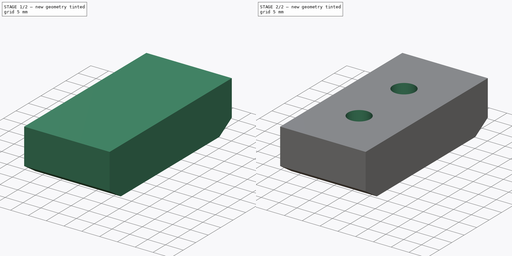
[diagram: build sequence overview — one tinted view per stage of 2, left to right]
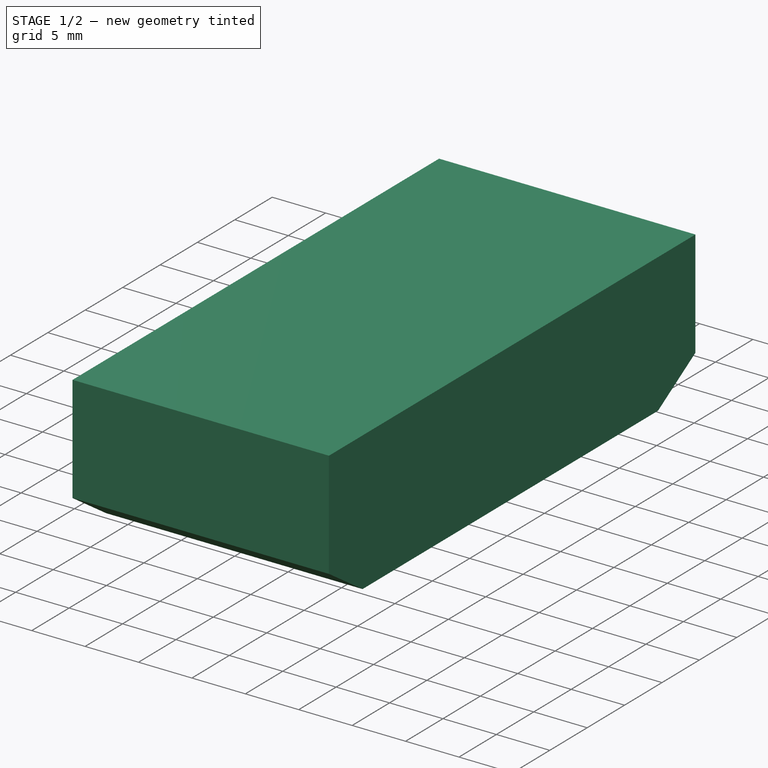
[diagram: stage 1 of 2 — iso view after this stage's code; geometry added in this stage tinted green]
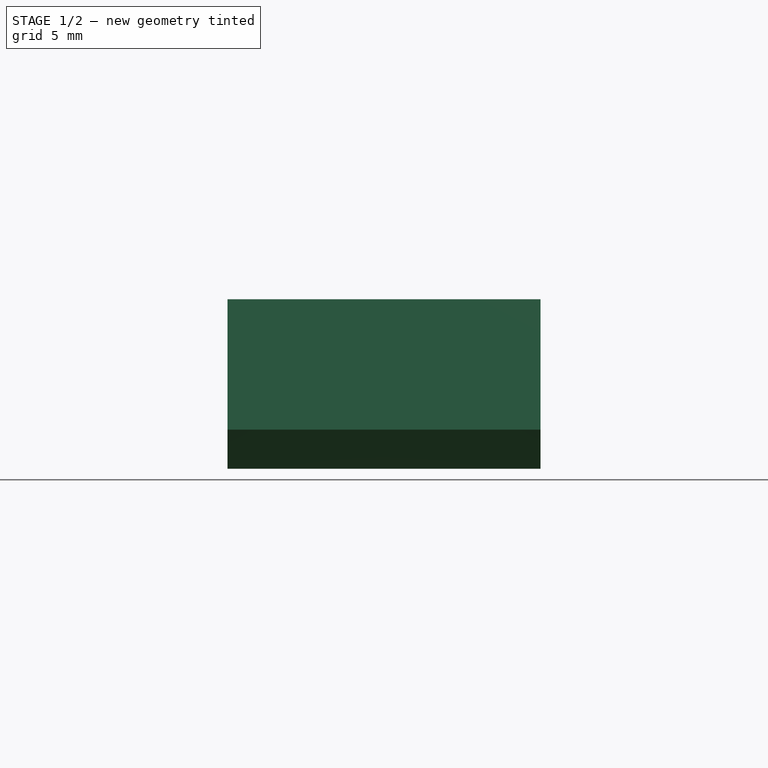
[diagram: stage 1 of 2 — front view after this stage's code; geometry added in this stage tinted green]
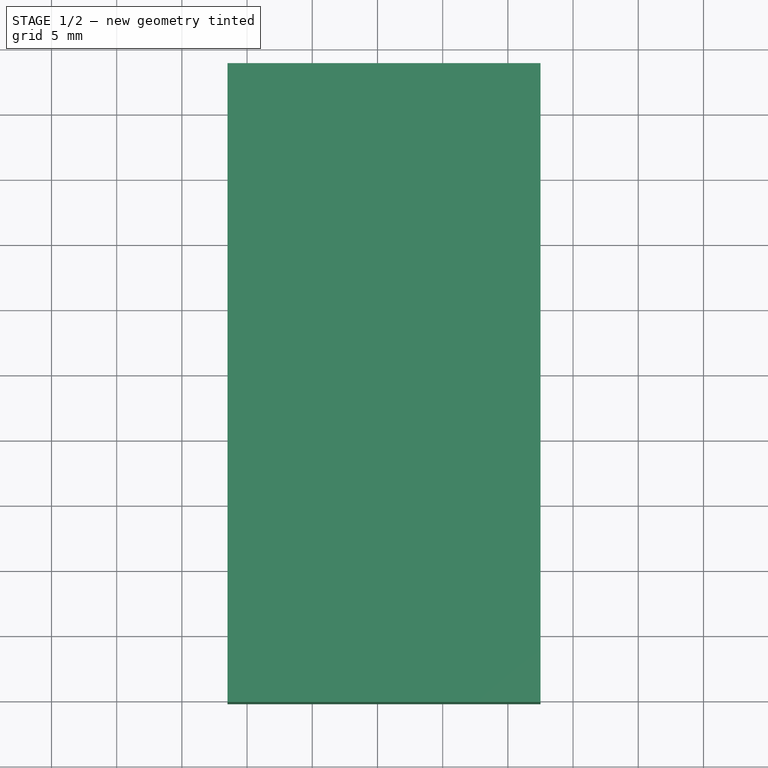
[diagram: stage 1 of 2 — top view after this stage's code; geometry added in this stage tinted green]
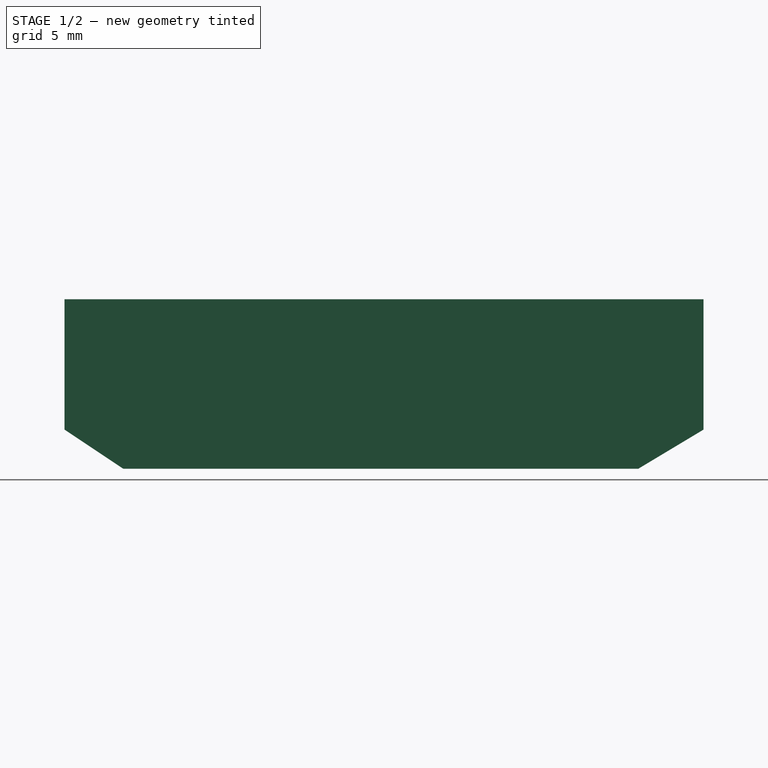
[diagram: stage 1 of 2 — right view after this stage's code; geometry added in this stage tinted green]
FCSTD DOCUMENT  (FreeCAD 0.18R16146 (Git))
Label: z-carriage-spacer
License: All rights reserved
LicenseURL: http://en.wikipedia.org/wiki/All_rights_reserved
objects: Sketcher::SketchObject×2, PartDesign::Pad×1, PartDesign::Pocket×1, PartDesign::Body×1
note: 7 computed .brp shape members not serialized (recipe doc carries the construction recipe); baked Part::Feature solids carry a one-line shape summary decoded from their .brp

FEATURE [Sketcher::SketchObject] Sketch020
  AttachmentOffset = pos=(0,0,143.5) rot=(0,0,1;0rad)
  MapMode = 5
  Placement = pos=(143.5,-3.19e-14,3.19e-14) rot=(0.57735,0.57735,0.57735;2.0944rad)
  Support = -> [YZ_Plane001]
  sketch-geometry (6):
    g0: LineSegment StartX=-40.25 StartY=49 StartZ=0 EndX=8.75 EndY=49 EndZ=0
    g1: LineSegment StartX=-40.25 StartY=49 StartZ=0 EndX=-40.25 EndY=39 EndZ=0
    g2: LineSegment StartX=-40.25 StartY=39 StartZ=0 EndX=-35.75 EndY=36 EndZ=0
    g3: LineSegment StartX=-35.75 StartY=36 StartZ=0 EndX=3.75 EndY=36 EndZ=0
    g4: LineSegment StartX=3.75 StartY=36 StartZ=0 EndX=8.75 EndY=39 EndZ=0
    g5: LineSegment StartX=8.75 StartY=39 StartZ=0 EndX=8.75 EndY=49 EndZ=0
  constraints (18):
    c: Horizontal(g0)
    c: Coincident(g1,g0)
    c: Vertical(g1)
    c: Coincident(g2,g1)
    c: Coincident(g3,g2)
    c: Horizontal(g3)
    c: Coincident(g4,g3)
    c: Coincident(g5,g4)
    c: Coincident(g5,g0)
    c: Vertical(g5)
    c: DistanceY(g1,g4) = 0
    c: DistanceY(g1,g1) = 10
    c: DistanceY(g2,g1) = 3
    c: DistanceX(g0,g0) = 49
    c: DistanceX(g3,g3) = 39.5
    c: DistanceX(g1,g2) = 4.5
    c: DistanceY(g-1,g4) = 39
    c: DistanceX(g-1,g4) = 8.75
FEATURE [PartDesign::Pad] Pad001
  Length = 24
  Length2 = 100
  Placement = pos=(0,0,0) rot=(0.57735,0.57735,0.57735;2.0944rad)
  Profile = -> Sketch020
  Type = 0
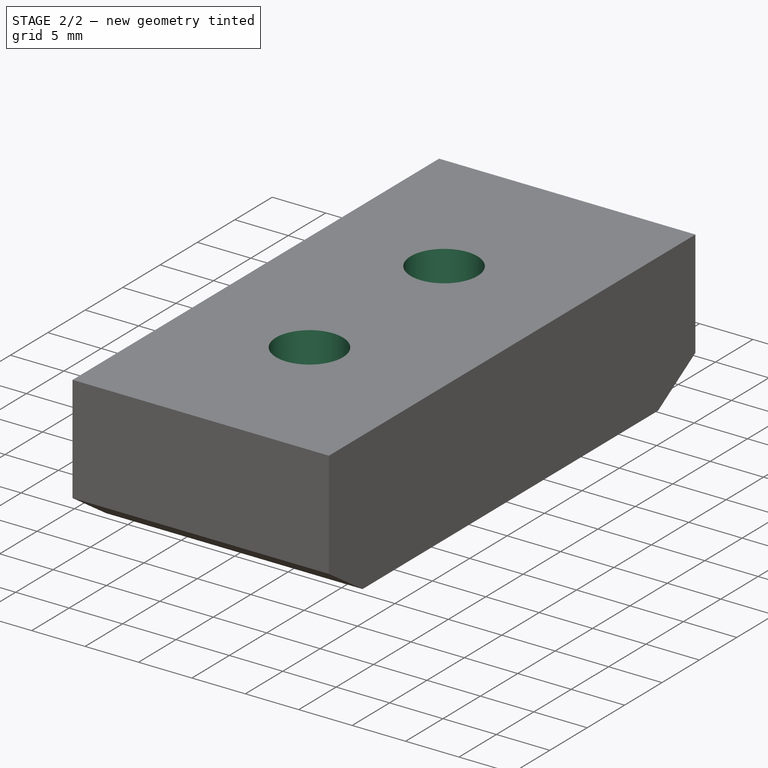
[diagram: stage 2 of 2 — iso view after this stage's code; geometry added in this stage tinted green]
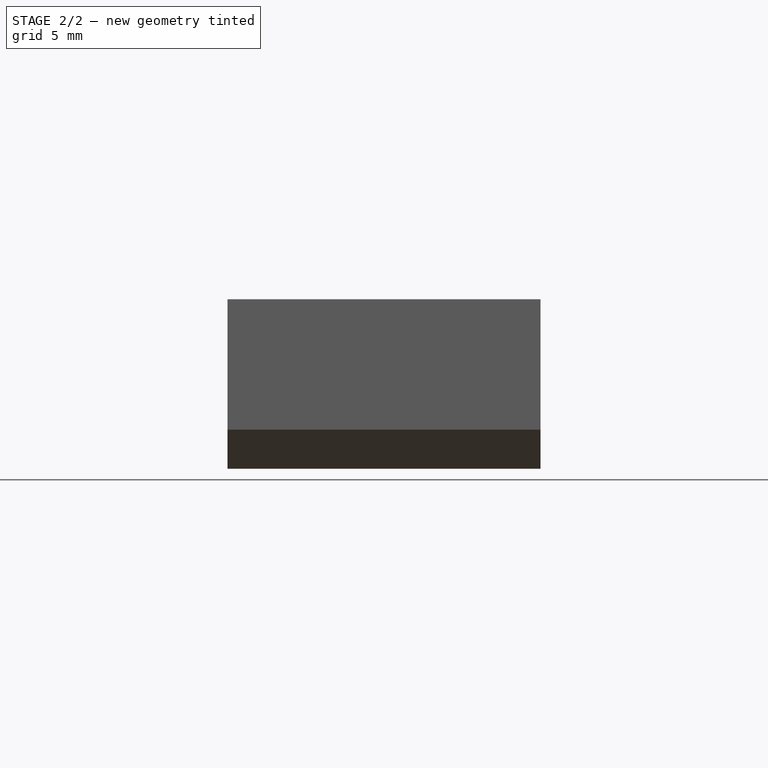
[diagram: stage 2 of 2 — front view after this stage's code; geometry added in this stage tinted green]
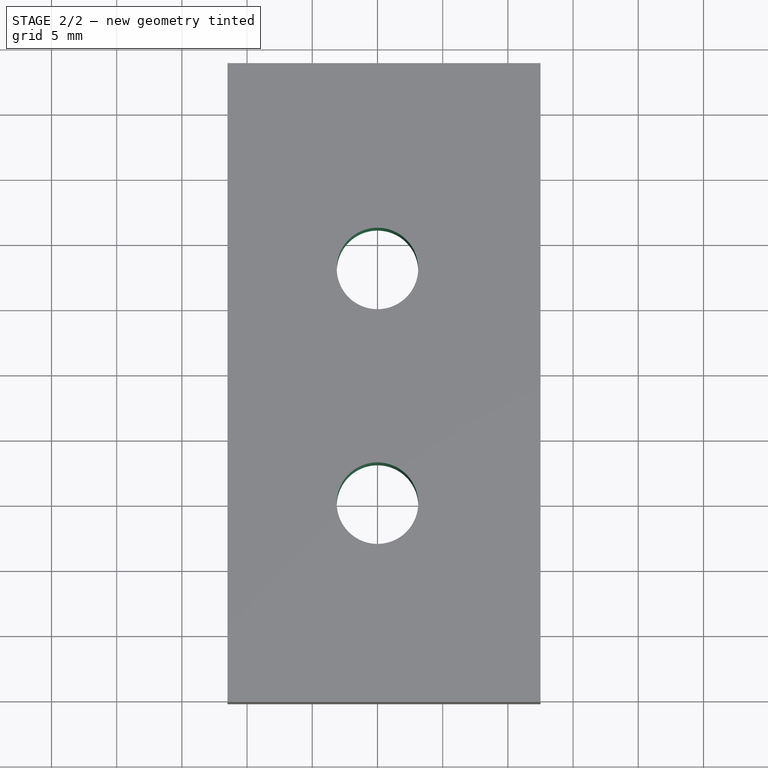
[diagram: stage 2 of 2 — top view after this stage's code; geometry added in this stage tinted green]
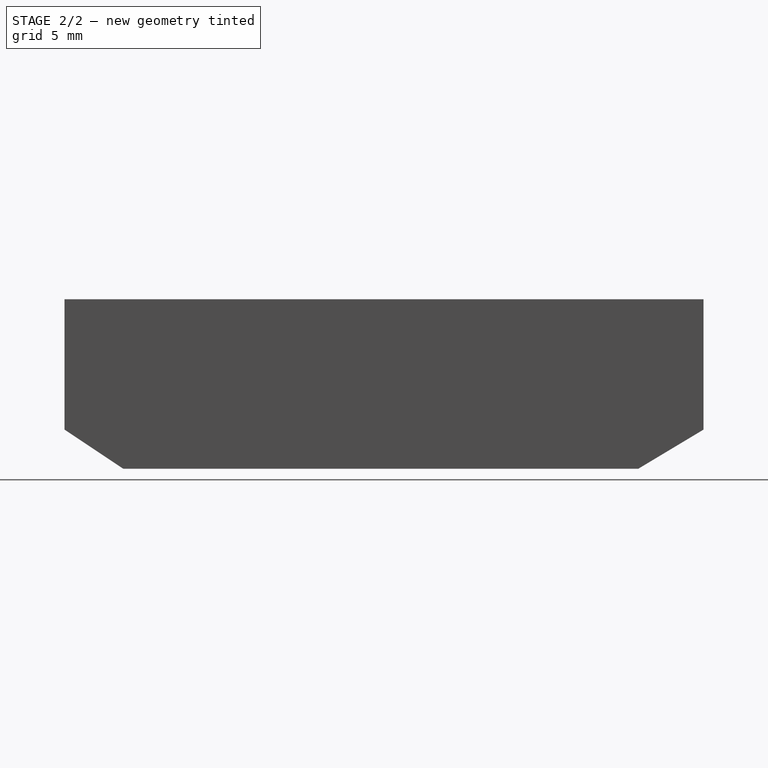
[diagram: stage 2 of 2 — right view after this stage's code; geometry added in this stage tinted green]
FEATURE [Sketcher::SketchObject] Sketch021
  MapMode = 5
  Support = -> [XY_Plane001]
  sketch-geometry (2):
    g0: Circle CenterX=155 CenterY=-7 CenterZ=0 NormalX=0 NormalY=0 NormalZ=1 AngleXU=0 Radius=3.125
    g1: Circle CenterX=155 CenterY=-25 CenterZ=0 NormalX=0 NormalY=0 NormalZ=1 AngleXU=0 Radius=3.125
  constraints (6):
    c: DistanceX(g1,g0) = 0
    c: DistanceY(g1,g0) = 18
    c: Diameter(g0) = 6.25
    c: DistanceX(g-1,g0) = 155
    c: DistanceY(g0,g-1) = 7
    c: Equal(g0,g1)
FEATURE [PartDesign::Pocket] Pocket019
  BaseFeature = -> Pad001
  Length = 5
  Length2 = 100
  Placement = pos=(0,0,0) rot=(0.57735,0.57735,0.57735;2.0944rad)
  Profile = -> Sketch021
  Reversed = true
  Type = 1
FEATURE [PartDesign::Body] Body001  label="z-carriage-spacer"
  Group = -> [Sketch020,Pad001,Sketch021,Pocket019]
  Origin = -> Origin001
  Tip = -> Pocket019
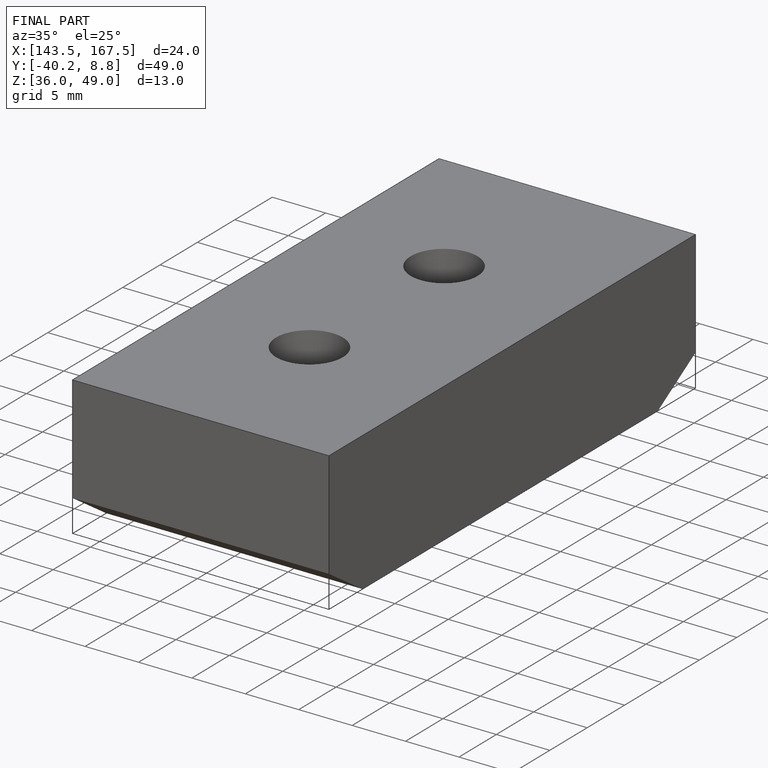
[diagram: finished part — iso view with bounding-box wireframe]
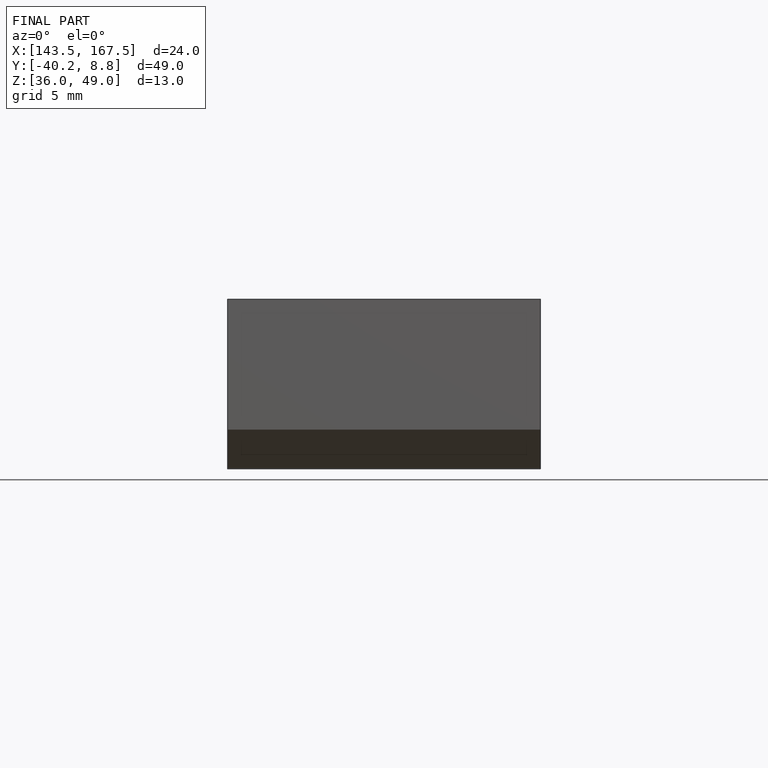
[diagram: finished part — front view with bounding-box wireframe]
